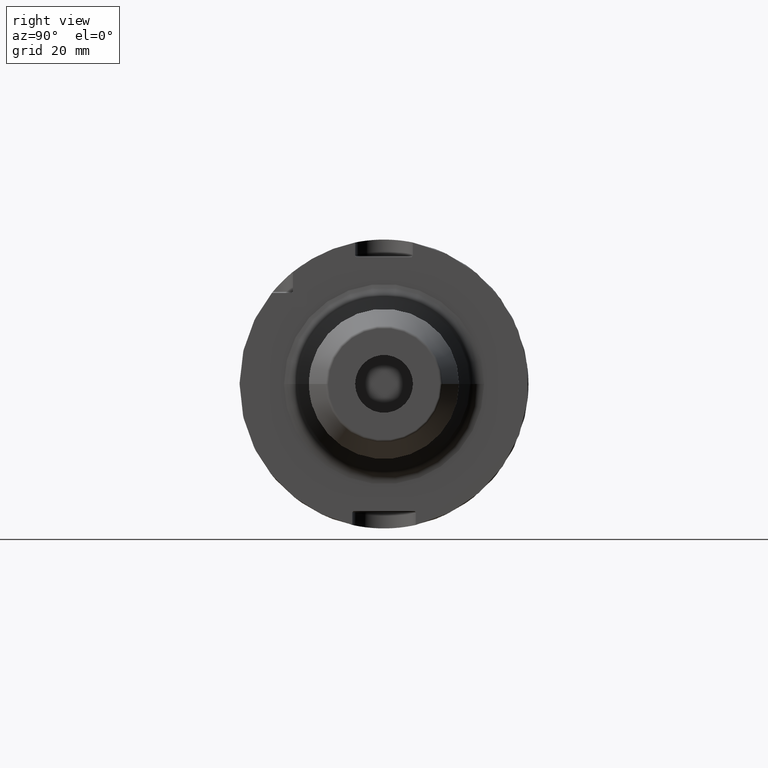
[diagram: clean part render]
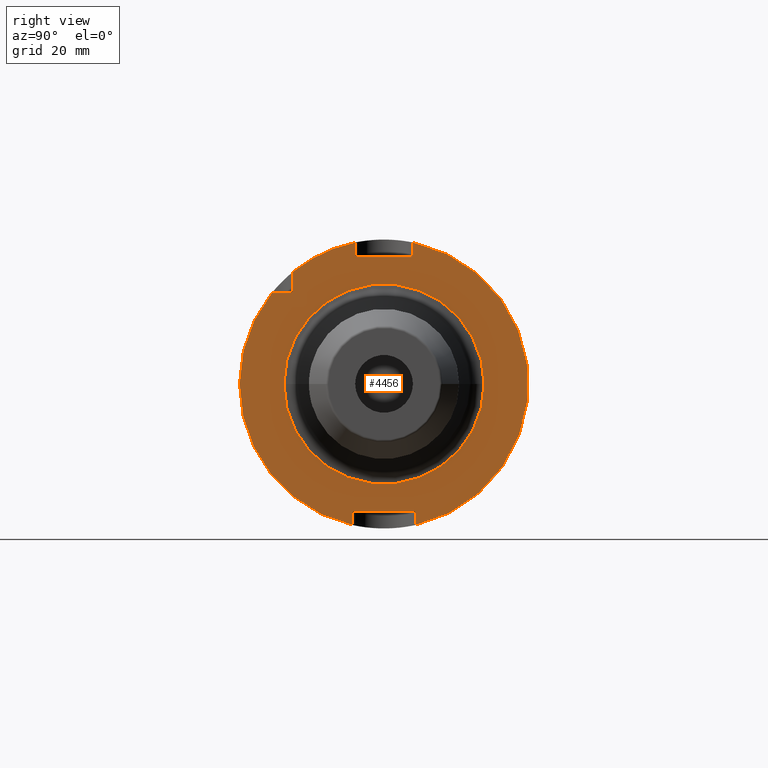
[diagram: same view with one face highlighted and labeled with its STEP entity id]
A machine part, right view. The second image highlights one B-rep face of the part: STEP entity #4456.
In plain terms, the highlighted planar face has unit normal (1, 0, 0).
Its self-contained STEP definition (entity closure, byte-faithful):
#1051=DIRECTION('',(0.E0,-7.071067811865E-1,-7.071067811865E-1));
#1052=VECTOR('',#1051,5.656854249492E-1);
#1053=CARTESIAN_POINT('',(2.9E1,-3.15E1,3.19E1));
#1054=LINE('',#1053,#1052);
#1059=DIRECTION('',(0.E0,1.E0,0.E0));
#1060=VECTOR('',#1059,6.929756630708E0);
#1061=CARTESIAN_POINT('',(2.9E1,-3.882975663071E1,3.15E1));
#1062=LINE('',#1061,#1060);
#1063=DIRECTION('',(0.E0,0.E0,-1.E0));
#1064=VECTOR('',#1063,6.929756630708E0);
#1065=CARTESIAN_POINT('',(2.9E1,-3.15E1,3.882975663071E1));
#1066=LINE('',#1065,#1064);
#1067=DIRECTION('',(0.E0,0.E0,-1.E0));
#1068=VECTOR('',#1067,4.589794855664E0);
#1069=CARTESIAN_POINT('',(2.9E1,-1.E1,4.898979485566E1));
#1070=LINE('',#1069,#1068);
#1071=DIRECTION('',(0.E0,1.E0,0.E0));
#1072=VECTOR('',#1071,1.92E1);
#1073=CARTESIAN_POINT('',(2.9E1,-9.6E0,4.4E1));
#1074=LINE('',#1073,#1072);
#1075=DIRECTION('',(0.E0,0.E0,-1.E0));
#1076=VECTOR('',#1075,4.589794855664E0);
#1077=CARTESIAN_POINT('',(2.9E1,1.E1,4.898979485566E1));
#1078=LINE('',#1077,#1076);
#1079=DIRECTION('',(0.E0,0.E0,1.E0));
#1080=VECTOR('',#1079,4.374993593029E0);
#1081=CARTESIAN_POINT('',(2.9E1,1.1E1,-4.877499359303E1));
#1082=LINE('',#1081,#1080);
#1083=DIRECTION('',(0.E0,-1.E0,0.E0));
#1084=VECTOR('',#1083,2.12E1);
#1085=CARTESIAN_POINT('',(2.9E1,1.06E1,-4.4E1));
#1086=LINE('',#1085,#1084);
#1087=DIRECTION('',(0.E0,0.E0,1.E0));
#1088=VECTOR('',#1087,4.374993593029E0);
#1089=CARTESIAN_POINT('',(2.9E1,-1.1E1,-4.877499359303E1));
#1090=LINE('',#1089,#1088);
#1091=CARTESIAN_POINT('',(2.9E1,0.E0,0.E0));
#1092=DIRECTION('',(1.E0,0.E0,0.E0));
#1093=DIRECTION('',(0.E0,1.E0,0.E0));
#1094=AXIS2_PLACEMENT_3D('',#1091,#1092,#1093);
#1096=CARTESIAN_POINT('',(2.9E1,0.E0,0.E0));
#1097=DIRECTION('',(1.E0,0.E0,0.E0));
#1098=DIRECTION('',(0.E0,-1.E0,0.E0));
#1099=AXIS2_PLACEMENT_3D('',#1096,#1097,#1098);
#1114=CARTESIAN_POINT('',(2.9E1,0.E0,0.E0));
#1115=DIRECTION('',(1.E0,0.E0,0.E0));
#1116=DIRECTION('',(0.E0,2.2E-1,-9.754998718606E-1));
#1117=AXIS2_PLACEMENT_3D('',#1114,#1115,#1116);
#1127=CARTESIAN_POINT('',(2.9E1,0.E0,0.E0));
#1128=DIRECTION('',(1.E0,0.E0,0.E0));
#1129=DIRECTION('',(0.E0,-7.765951326142E-1,6.3E-1));
#1130=AXIS2_PLACEMENT_3D('',#1127,#1128,#1129);
#1144=CARTESIAN_POINT('',(2.9E1,0.E0,0.E0));
#1145=DIRECTION('',(1.E0,0.E0,0.E0));
#1146=DIRECTION('',(0.E0,-2.E-1,9.797958971133E-1));
#1147=AXIS2_PLACEMENT_3D('',#1144,#1145,#1146);
#1251=DIRECTION('',(0.E0,7.071067811866E-1,-7.071067811865E-1));
#1252=VECTOR('',#1251,5.656854249492E-1);
#1253=CARTESIAN_POINT('',(2.9E1,1.06E1,-4.4E1));
#1254=LINE('',#1253,#1252);
#1259=DIRECTION('',(0.E0,7.071067811866E-1,7.071067811865E-1));
#1260=VECTOR('',#1259,5.656854249492E-1);
#1261=CARTESIAN_POINT('',(2.9E1,-1.1E1,-4.44E1));
#1262=LINE('',#1261,#1260);
#1748=DIRECTION('',(0.E0,-7.071067811866E-1,-7.071067811865E-1));
#1749=VECTOR('',#1748,5.656854249492E-1);
#1750=CARTESIAN_POINT('',(2.9E1,1.E1,4.44E1));
#1751=LINE('',#1750,#1749);
#1756=DIRECTION('',(0.E0,-7.071067811866E-1,7.071067811865E-1));
#1757=VECTOR('',#1756,5.656854249492E-1);
#1758=CARTESIAN_POINT('',(2.9E1,-9.6E0,4.4E1));
#1759=LINE('',#1758,#1757);
#3134=CARTESIAN_POINT('',(2.9E1,-9.6E0,4.4E1));
#3135=CARTESIAN_POINT('',(2.9E1,-1.E1,4.44E1));
#3136=VERTEX_POINT('',#3134);
#3137=VERTEX_POINT('',#3135);
#3138=CARTESIAN_POINT('',(2.9E1,1.E1,4.44E1));
#3139=CARTESIAN_POINT('',(2.9E1,9.6E0,4.4E1));
#3140=VERTEX_POINT('',#3138);
#3141=VERTEX_POINT('',#3139);
#3142=CARTESIAN_POINT('',(2.9E1,1.06E1,-4.4E1));
#3143=CARTESIAN_POINT('',(2.9E1,1.1E1,-4.44E1));
#3144=VERTEX_POINT('',#3142);
#3145=VERTEX_POINT('',#3143);
#3146=CARTESIAN_POINT('',(2.9E1,-1.1E1,-4.44E1));
#3147=CARTESIAN_POINT('',(2.9E1,-1.06E1,-4.4E1));
#3148=VERTEX_POINT('',#3146);
#3149=VERTEX_POINT('',#3147);
#3187=CARTESIAN_POINT('',(2.9E1,1.1E1,-4.877499359303E1));
#3189=VERTEX_POINT('',#3187);
#3195=CARTESIAN_POINT('',(2.9E1,-1.1E1,-4.877499359303E1));
#3197=VERTEX_POINT('',#3195);
#3230=CARTESIAN_POINT('',(2.9E1,-1.E1,4.898979485566E1));
#3231=VERTEX_POINT('',#3230);
#3232=CARTESIAN_POINT('',(2.9E1,1.E1,4.898979485566E1));
#3233=VERTEX_POINT('',#3232);
#3236=CARTESIAN_POINT('',(2.9E1,-3.15E1,3.19E1));
#3237=CARTESIAN_POINT('',(2.9E1,-3.19E1,3.15E1));
#3238=VERTEX_POINT('',#3236);
#3239=VERTEX_POINT('',#3237);
#3245=CARTESIAN_POINT('',(2.9E1,-3.882975663071E1,3.15E1));
#3247=VERTEX_POINT('',#3245);
#3249=CARTESIAN_POINT('',(2.9E1,-3.15E1,3.882975663071E1));
#3251=VERTEX_POINT('',#3249);
#3349=CARTESIAN_POINT('',(2.9E1,3.464241622603E1,-1.883402625695E-14));
#3350=CARTESIAN_POINT('',(2.9E1,-3.464241622603E1,0.E0));
#3351=VERTEX_POINT('',#3349);
#3352=VERTEX_POINT('',#3350);
#4412=CARTESIAN_POINT('',(2.9E1,0.E0,0.E0));
#4413=DIRECTION('',(1.E0,0.E0,0.E0));
#4414=DIRECTION('',(0.E0,-1.E0,0.E0));
#4415=AXIS2_PLACEMENT_3D('',#4412,#4413,#4414);
#4416=PLANE('',#4415);
#4418=ORIENTED_EDGE('',*,*,#4417,.T.);
#4419=ORIENTED_EDGE('',*,*,#4402,.F.);
#4421=ORIENTED_EDGE('',*,*,#4420,.F.);
#4423=ORIENTED_EDGE('',*,*,#4422,.F.);
#4425=ORIENTED_EDGE('',*,*,#4424,.T.);
#4427=ORIENTED_EDGE('',*,*,#4426,.F.);
#4429=ORIENTED_EDGE('',*,*,#4428,.T.);
#4431=ORIENTED_EDGE('',*,*,#4430,.F.);
#4433=ORIENTED_EDGE('',*,*,#4432,.F.);
#4435=ORIENTED_EDGE('',*,*,#4434,.F.);
#4437=ORIENTED_EDGE('',*,*,#4436,.T.);
#4439=ORIENTED_EDGE('',*,*,#4438,.F.);
#4441=ORIENTED_EDGE('',*,*,#4440,.T.);
#4443=ORIENTED_EDGE('',*,*,#4442,.F.);
#4445=ORIENTED_EDGE('',*,*,#4444,.F.);
#4447=ORIENTED_EDGE('',*,*,#4446,.F.);
#4448=EDGE_LOOP('',(#4418,#4419,#4421,#4423,#4425,#4427,#4429,#4431,#4433,#4435,
#4437,#4439,#4441,#4443,#4445,#4447));
#4449=FACE_OUTER_BOUND('',#4448,.F.);
#4451=ORIENTED_EDGE('',*,*,#4450,.T.);
#4453=ORIENTED_EDGE('',*,*,#4452,.T.);
#4454=EDGE_LOOP('',(#4451,#4453));
#4455=FACE_BOUND('',#4454,.F.);
#4456=ADVANCED_FACE('',(#4449,#4455),#4416,.T.);
#1095=CIRCLE('',#1094,3.464241622603E1);
#1100=CIRCLE('',#1099,3.464241622603E1);
#1118=CIRCLE('',#1117,5.E1);
#1131=CIRCLE('',#1130,5.E1);
#1148=CIRCLE('',#1147,5.E1);
#4402=EDGE_CURVE('',#3238,#3239,#1054,.T.);
#4417=EDGE_CURVE('',#3247,#3239,#1062,.T.);
#4420=EDGE_CURVE('',#3251,#3238,#1066,.T.);
#4422=EDGE_CURVE('',#3231,#3251,#1148,.T.);
#4424=EDGE_CURVE('',#3231,#3137,#1070,.T.);
#4426=EDGE_CURVE('',#3136,#3137,#1759,.T.);
#4428=EDGE_CURVE('',#3136,#3141,#1074,.T.);
#4430=EDGE_CURVE('',#3140,#3141,#1751,.T.);
#4432=EDGE_CURVE('',#3233,#3140,#1078,.T.);
#4434=EDGE_CURVE('',#3189,#3233,#1118,.T.);
#4436=EDGE_CURVE('',#3189,#3145,#1082,.T.);
#4438=EDGE_CURVE('',#3144,#3145,#1254,.T.);
#4440=EDGE_CURVE('',#3144,#3149,#1086,.T.);
#4442=EDGE_CURVE('',#3148,#3149,#1262,.T.);
#4444=EDGE_CURVE('',#3197,#3148,#1090,.T.);
#4446=EDGE_CURVE('',#3247,#3197,#1131,.T.);
#4450=EDGE_CURVE('',#3351,#3352,#1095,.T.);
#4452=EDGE_CURVE('',#3352,#3351,#1100,.T.);